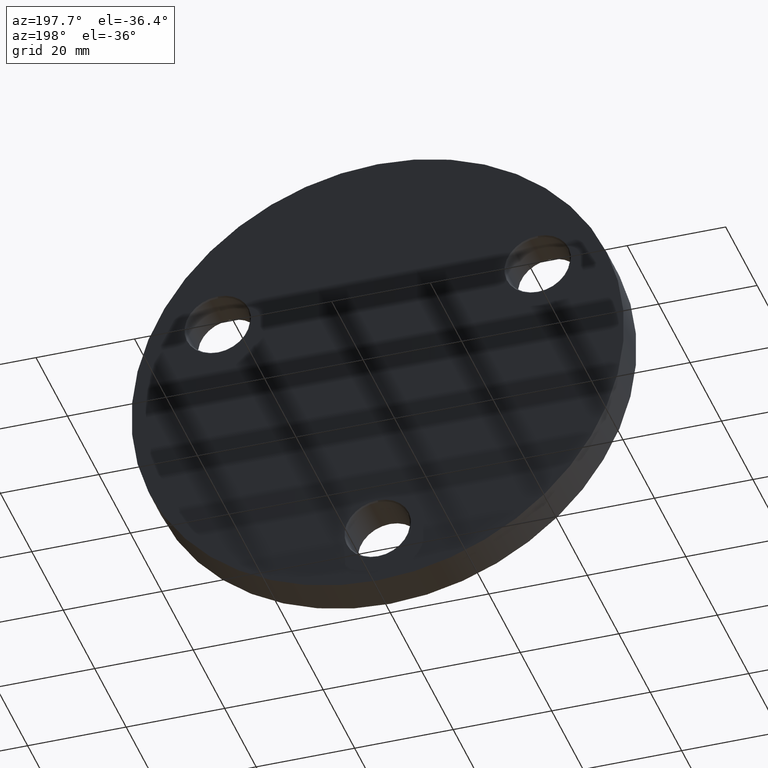
[diagram: clean part render]
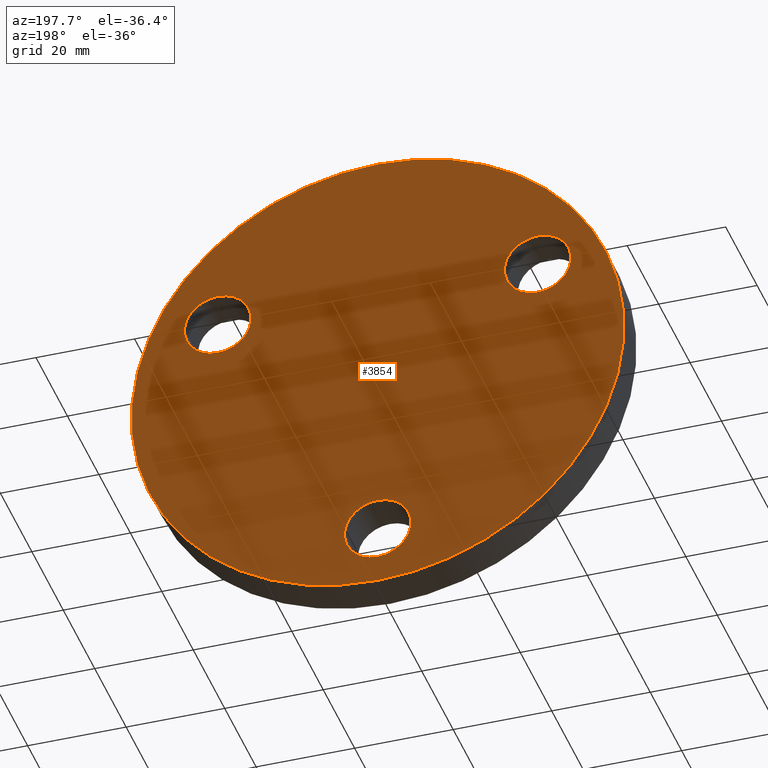
[diagram: same view with one face highlighted and labeled with its STEP entity id]
A machine part, auxiliary view. The second image highlights one B-rep face of the part: STEP entity #3854.
In plain terms, the highlighted planar face has unit normal (0, 1, 0).
Its self-contained STEP definition (entity closure, byte-faithful):
#124 = EDGE_CURVE ( 'NONE', #13191, #2478, #6505, .T. ) ;
#222 = DIRECTION ( 'NONE',  ( 0.000000000000000000, 0.000000000000000000, 1.000000000000000000 ) ) ;
#693 = EDGE_LOOP ( 'NONE', ( #4828, #4915 ) ) ;
#887 = CARTESIAN_POINT ( 'NONE',  ( -32.47595264191643594, 8.000000000000000000, 25.50000000000003553 ) ) ;
#890 = ORIENTED_EDGE ( 'NONE', *, *, #14393, .T. ) ;
#1013 = CARTESIAN_POINT ( 'NONE',  ( 0.000000000000000000, 8.000000000000000000, -37.50000000000000000 ) ) ;
#1091 = AXIS2_PLACEMENT_3D ( 'NONE', #6656, #7033, #4742 ) ;
#1635 = CIRCLE ( 'NONE', #6819, 6.750000000000006217 ) ;
#1830 = EDGE_CURVE ( 'NONE', #14013, #9802, #13493, .T. ) ;
#1983 = ORIENTED_EDGE ( 'NONE', *, *, #9170, .T. ) ;
#2056 = VERTEX_POINT ( 'NONE', #3526 ) ;
#2207 = DIRECTION ( 'NONE',  ( -0.000000000000000000, -1.000000000000000000, -0.000000000000000000 ) ) ;
#2362 = CARTESIAN_POINT ( 'NONE',  ( 6.123233995736766085E-15, 8.000000000000000000, 50.00000000000000000 ) ) ;
#2478 = VERTEX_POINT ( 'NONE', #2362 ) ;
#2658 = CARTESIAN_POINT ( 'NONE',  ( 32.47595264191645015, 8.000000000000000000, 18.74999999999999645 ) ) ;
#2962 = AXIS2_PLACEMENT_3D ( 'NONE', #2658, #10628, #5986 ) ;
#2970 = FACE_BOUND ( 'NONE', #10069, .T. ) ;
#3081 = DIRECTION ( 'NONE',  ( 0.000000000000000000, 0.000000000000000000, 1.000000000000000000 ) ) ;
#3105 = ORIENTED_EDGE ( 'NONE', *, *, #13785, .T. ) ;
#3526 = CARTESIAN_POINT ( 'NONE',  ( 32.47595264191645015, 8.000000000000000000, 25.50000000000001421 ) ) ;
#3854 = ADVANCED_FACE ( 'NONE', ( #2970, #11890, #5598, #14360 ), #11992, .T. ) ;
#4211 = AXIS2_PLACEMENT_3D ( 'NONE', #5537, #2207, #8972 ) ;
#4742 = DIRECTION ( 'NONE',  ( 0.000000000000000000, 0.000000000000000000, 1.000000000000000000 ) ) ;
#4763 = CIRCLE ( 'NONE', #4211, 6.750000000000019540 ) ;
#4828 = ORIENTED_EDGE ( 'NONE', *, *, #124, .T. ) ;
#4915 = ORIENTED_EDGE ( 'NONE', *, *, #12680, .T. ) ;
#4957 = CARTESIAN_POINT ( 'NONE',  ( 0.000000000000000000, 8.000000000000000000, -50.00000000000000000 ) ) ;
#5306 = CARTESIAN_POINT ( 'NONE',  ( 0.000000000000000000, 8.000000000000000000, 0.000000000000000000 ) ) ;
#5462 = DIRECTION ( 'NONE',  ( -0.000000000000000000, -1.000000000000000000, -0.000000000000000000 ) ) ;
#5537 = CARTESIAN_POINT ( 'NONE',  ( -32.47595264191643594, 8.000000000000000000, 18.75000000000001776 ) ) ;
#5598 = FACE_BOUND ( 'NONE', #10116, .T. ) ;
#5969 = VERTEX_POINT ( 'NONE', #12193 ) ;
#5986 = DIRECTION ( 'NONE',  ( 0.000000000000000000, 0.000000000000000000, 1.000000000000000000 ) ) ;
#6189 = CIRCLE ( 'NONE', #14133, 50.00000000000000000 ) ;
#6297 = DIRECTION ( 'NONE',  ( 0.000000000000000000, 1.000000000000000000, 0.000000000000000000 ) ) ;
#6414 = DIRECTION ( 'NONE',  ( 0.000000000000000000, -0.000000000000000000, 1.000000000000000000 ) ) ;
#6505 = CIRCLE ( 'NONE', #9208, 50.00000000000000000 ) ;
#6656 = CARTESIAN_POINT ( 'NONE',  ( 32.47595264191645015, 8.000000000000000000, 18.74999999999999645 ) ) ;
#6752 = EDGE_CURVE ( 'NONE', #2056, #12937, #8541, .T. ) ;
#6819 = AXIS2_PLACEMENT_3D ( 'NONE', #1013, #5462, #13348 ) ;
#6860 = DIRECTION ( 'NONE',  ( 0.000000000000000000, 1.000000000000000000, 0.000000000000000000 ) ) ;
#7033 = DIRECTION ( 'NONE',  ( -0.000000000000000000, -1.000000000000000000, -0.000000000000000000 ) ) ;
#7068 = ORIENTED_EDGE ( 'NONE', *, *, #1830, .T. ) ;
#8541 = CIRCLE ( 'NONE', #1091, 6.750000000000019540 ) ;
#8665 = CARTESIAN_POINT ( 'NONE',  ( 0.000000000000000000, 8.000000000000000000, 0.000000000000000000 ) ) ;
#8864 = AXIS2_PLACEMENT_3D ( 'NONE', #5306, #13140, #6414 ) ;
#8972 = DIRECTION ( 'NONE',  ( 0.000000000000000000, 0.000000000000000000, 1.000000000000000000 ) ) ;
#9170 = EDGE_CURVE ( 'NONE', #12937, #2056, #10080, .T. ) ;
#9208 = AXIS2_PLACEMENT_3D ( 'NONE', #12545, #6860, #222 ) ;
#9265 = DIRECTION ( 'NONE',  ( -0.000000000000000000, -1.000000000000000000, -0.000000000000000000 ) ) ;
#9541 = DIRECTION ( 'NONE',  ( 0.000000000000000000, 0.000000000000000000, 1.000000000000000000 ) ) ;
#9591 = EDGE_CURVE ( 'NONE', #12319, #5969, #10266, .T. ) ;
#9802 = VERTEX_POINT ( 'NONE', #887 ) ;
#10058 = CARTESIAN_POINT ( 'NONE',  ( 32.47595264191645015, 8.000000000000000000, 11.99999999999997335 ) ) ;
#10069 = EDGE_LOOP ( 'NONE', ( #13993, #1983 ) ) ;
#10080 = CIRCLE ( 'NONE', #2962, 6.750000000000019540 ) ;
#10116 = EDGE_LOOP ( 'NONE', ( #3105, #12582 ) ) ;
#10266 = CIRCLE ( 'NONE', #13289, 6.750000000000006217 ) ;
#10340 = CARTESIAN_POINT ( 'NONE',  ( 8.266365894244642222E-16, 8.000000000000000000, -44.25000000000000711 ) ) ;
#10475 = CARTESIAN_POINT ( 'NONE',  ( -32.47595264191643594, 8.000000000000000000, 11.99999999999999467 ) ) ;
#10557 = CARTESIAN_POINT ( 'NONE',  ( -32.47595264191643594, 8.000000000000000000, 18.75000000000001776 ) ) ;
#10628 = DIRECTION ( 'NONE',  ( -0.000000000000000000, -1.000000000000000000, -0.000000000000000000 ) ) ;
#11140 = EDGE_LOOP ( 'NONE', ( #890, #7068 ) ) ;
#11393 = CARTESIAN_POINT ( 'NONE',  ( 0.000000000000000000, 8.000000000000000000, -37.50000000000000000 ) ) ;
#11890 = FACE_BOUND ( 'NONE', #11140, .T. ) ;
#11992 = PLANE ( 'NONE',  #8864 ) ;
#12193 = CARTESIAN_POINT ( 'NONE',  ( 0.000000000000000000, 8.000000000000000000, -30.74999999999999289 ) ) ;
#12319 = VERTEX_POINT ( 'NONE', #10340 ) ;
#12545 = CARTESIAN_POINT ( 'NONE',  ( 0.000000000000000000, 8.000000000000000000, 0.000000000000000000 ) ) ;
#12582 = ORIENTED_EDGE ( 'NONE', *, *, #9591, .T. ) ;
#12680 = EDGE_CURVE ( 'NONE', #2478, #13191, #6189, .T. ) ;
#12937 = VERTEX_POINT ( 'NONE', #10058 ) ;
#13140 = DIRECTION ( 'NONE',  ( 0.000000000000000000, 1.000000000000000000, 0.000000000000000000 ) ) ;
#13191 = VERTEX_POINT ( 'NONE', #4957 ) ;
#13289 = AXIS2_PLACEMENT_3D ( 'NONE', #11393, #9265, #13757 ) ;
#13348 = DIRECTION ( 'NONE',  ( 0.000000000000000000, 0.000000000000000000, 1.000000000000000000 ) ) ;
#13493 = CIRCLE ( 'NONE', #14374, 6.750000000000019540 ) ;
#13757 = DIRECTION ( 'NONE',  ( 0.000000000000000000, 0.000000000000000000, 1.000000000000000000 ) ) ;
#13785 = EDGE_CURVE ( 'NONE', #5969, #12319, #1635, .T. ) ;
#13942 = DIRECTION ( 'NONE',  ( -0.000000000000000000, -1.000000000000000000, -0.000000000000000000 ) ) ;
#13993 = ORIENTED_EDGE ( 'NONE', *, *, #6752, .T. ) ;
#14013 = VERTEX_POINT ( 'NONE', #10475 ) ;
#14133 = AXIS2_PLACEMENT_3D ( 'NONE', #8665, #6297, #3081 ) ;
#14360 = FACE_OUTER_BOUND ( 'NONE', #693, .T. ) ;
#14374 = AXIS2_PLACEMENT_3D ( 'NONE', #10557, #13942, #9541 ) ;
#14393 = EDGE_CURVE ( 'NONE', #9802, #14013, #4763, .T. ) ;